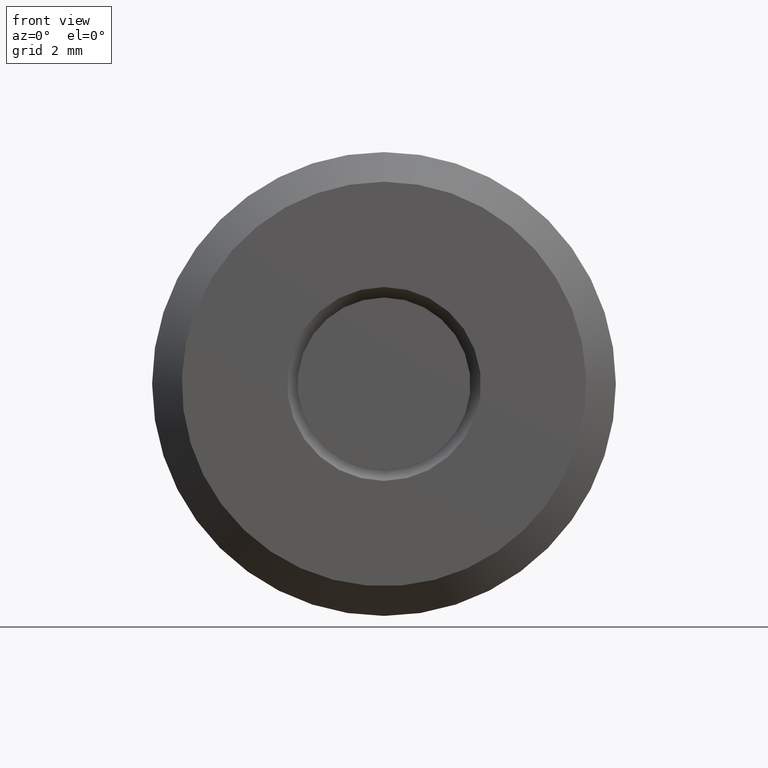
[diagram: clean part render]
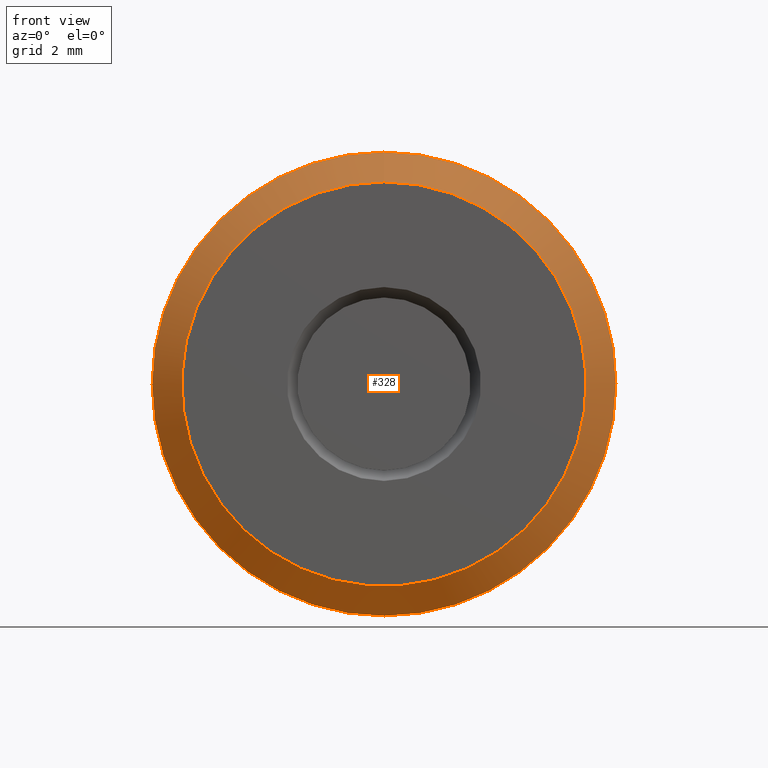
[diagram: same view with one face highlighted and labeled with its STEP entity id]
A machine part, front view. The second image highlights one B-rep face of the part: STEP entity #328.
In plain terms, the highlighted conical surface has half-angle 45 deg.
Its self-contained STEP definition (entity closure, byte-faithful):
#3 = DIRECTION ( 'NONE',  ( 0.0000000000000000000, 0.0000000000000000000, 1.000000000000000000 ) ) ;
#5 = CIRCLE ( 'NONE', #241, 0.1362500000000000100 ) ;
#11 = EDGE_CURVE ( 'NONE', #537, #537, #5, .T. ) ;
#76 = CIRCLE ( 'NONE', #429, 0.1562500000000000000 ) ;
#77 = DIRECTION ( 'NONE',  ( -0.0000000000000000000, 1.000000000000000000, -0.0000000000000000000 ) ) ;
#83 = CARTESIAN_POINT ( 'NONE',  ( 0.0000000000000000000, 0.02000000000000018400, 0.1562500000000000000 ) ) ;
#126 = FACE_BOUND ( 'NONE', #185, .T. ) ;
#163 = CARTESIAN_POINT ( 'NONE',  ( 0.0000000000000000000, 0.02000000000000018400, 0.0000000000000000000 ) ) ;
#166 = AXIS2_PLACEMENT_3D ( 'NONE', #347, #389, #291 ) ;
#179 = EDGE_LOOP ( 'NONE', ( #306 ) ) ;
#185 = EDGE_LOOP ( 'NONE', ( #208 ) ) ;
#208 = ORIENTED_EDGE ( 'NONE', *, *, #11, .T. ) ;
#216 = CARTESIAN_POINT ( 'NONE',  ( 0.0000000000000000000, -1.293516365760028200E-017, 0.1362500000000000100 ) ) ;
#226 = VERTEX_POINT ( 'NONE', #83 ) ;
#241 = AXIS2_PLACEMENT_3D ( 'NONE', #247, #513, #3 ) ;
#247 = CARTESIAN_POINT ( 'NONE',  ( 0.0000000000000000000, -1.293516365760028200E-017, 0.0000000000000000000 ) ) ;
#291 = DIRECTION ( 'NONE',  ( 0.0000000000000000000, 0.0000000000000000000, 1.000000000000000000 ) ) ;
#306 = ORIENTED_EDGE ( 'NONE', *, *, #512, .F. ) ;
#328 = ADVANCED_FACE ( 'NONE', ( #126, #468 ), #375, .T. ) ;
#347 = CARTESIAN_POINT ( 'NONE',  ( 0.0000000000000000000, 0.02000000000000018400, 0.0000000000000000000 ) ) ;
#375 = CONICAL_SURFACE ( 'NONE', #166, 0.1562500000000000000, 0.7853981633974431700 ) ;
#389 = DIRECTION ( 'NONE',  ( -0.0000000000000000000, 1.000000000000000000, -0.0000000000000000000 ) ) ;
#429 = AXIS2_PLACEMENT_3D ( 'NONE', #163, #77, #467 ) ;
#467 = DIRECTION ( 'NONE',  ( 0.0000000000000000000, 0.0000000000000000000, 1.000000000000000000 ) ) ;
#468 = FACE_OUTER_BOUND ( 'NONE', #179, .T. ) ;
#512 = EDGE_CURVE ( 'NONE', #226, #226, #76, .T. ) ;
#513 = DIRECTION ( 'NONE',  ( -0.0000000000000000000, 1.000000000000000000, -0.0000000000000000000 ) ) ;
#537 = VERTEX_POINT ( 'NONE', #216 ) ;